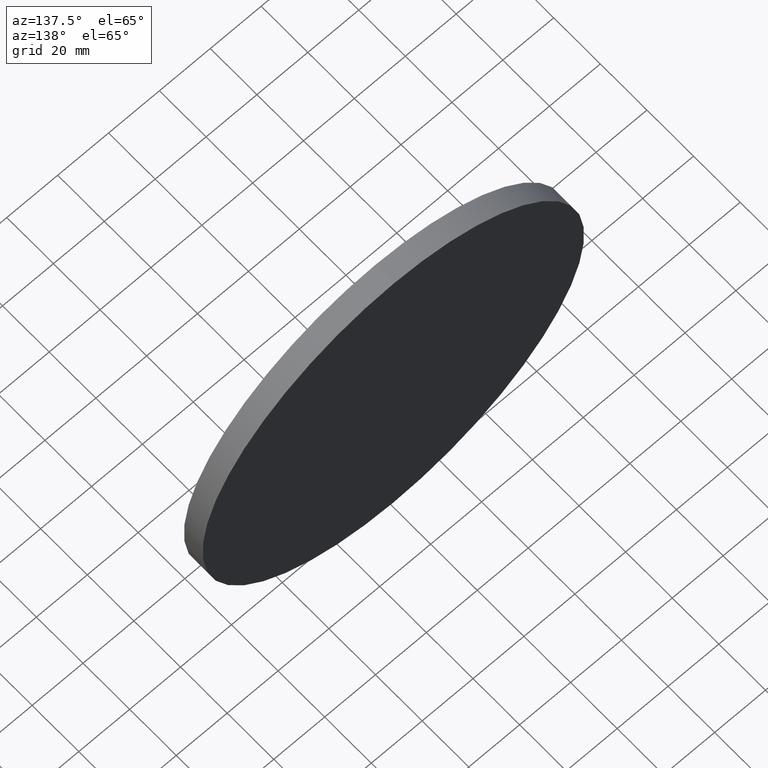
[diagram: clean part render]
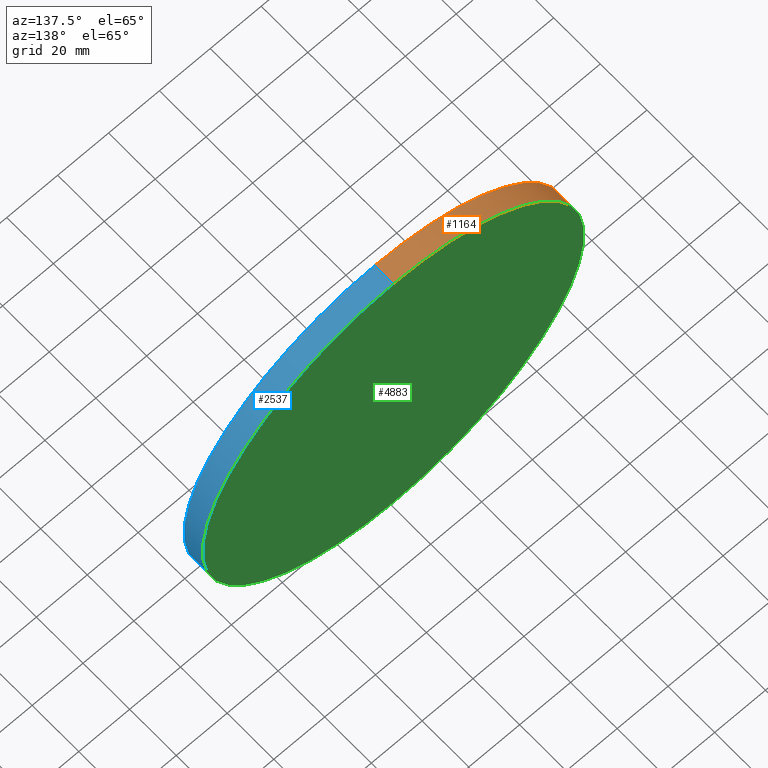
[diagram: same view with three faces highlighted in distinct colors, each labeled with its STEP entity id]
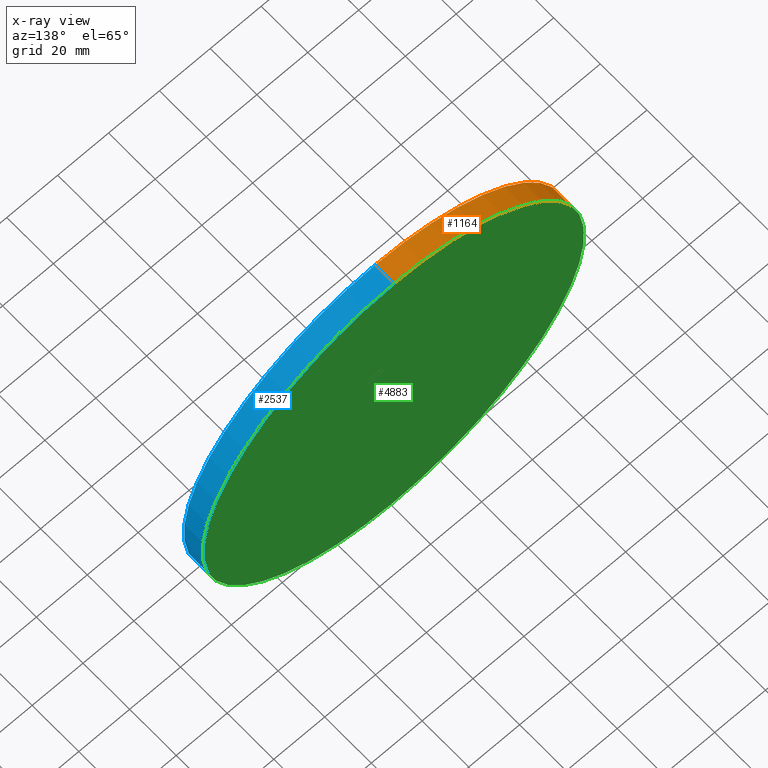
[diagram: x-ray of the same camera — body ghosted, the three highlighted faces saturated]
A machine part, auxiliary view with three faces highlighted in distinct colors.
The next image is the same camera in x-ray (body ghosted, the three faces saturated) — at least one of them is partly hidden behind the body in this view.
Their STEP definitions:

[orange] entity #1164 — the highlighted cylindrical surface (partial cylindrical patch) has radius 75 mm, axis along (-0, -1, -0).
#32 = EDGE_CURVE ( 'NONE', #1029, #862, #14235, .T. ) ;
#567 = CIRCLE ( 'NONE', #10108, 75.00000000000001421 ) ;
#862 = VERTEX_POINT ( 'NONE', #3249 ) ;
#1029 = VERTEX_POINT ( 'NONE', #5785 ) ;
#1164 = ADVANCED_FACE ( 'NONE', ( #10298 ), #2645, .T. ) ;
#1425 = DIRECTION ( 'NONE',  ( -0.000000000000000000, -1.000000000000000000, -0.000000000000000000 ) ) ;
#1561 = CARTESIAN_POINT ( 'NONE',  ( 0.000000000000000000, 4.000000000000000000, 0.000000000000000000 ) ) ;
#2645 = CYLINDRICAL_SURFACE ( 'NONE', #7784, 75.00000000000001421 ) ;
#3097 = DIRECTION ( 'NONE',  ( 0.000000000000000000, 0.000000000000000000, 1.000000000000000000 ) ) ;
#3249 = CARTESIAN_POINT ( 'NONE',  ( 9.184850993605150311E-15, -4.000000000000000000, 75.00000000000001421 ) ) ;
#3321 = CARTESIAN_POINT ( 'NONE',  ( 0.000000000000000000, 4.000000000000000000, -75.00000000000001421 ) ) ;
#3605 = ORIENTED_EDGE ( 'NONE', *, *, #4415, .T. ) ;
#4080 = CARTESIAN_POINT ( 'NONE',  ( 0.000000000000000000, -4.000000000000000000, -75.00000000000001421 ) ) ;
#4113 = DIRECTION ( 'NONE',  ( -0.000000000000000000, -1.000000000000000000, -0.000000000000000000 ) ) ;
#4415 = EDGE_CURVE ( 'NONE', #9393, #862, #567, .T. ) ;
#4463 = CIRCLE ( 'NONE', #11607, 75.00000000000001421 ) ;
#4723 = VECTOR ( 'NONE', #1425, 1000.000000000000000 ) ;
#5473 = EDGE_CURVE ( 'NONE', #9925, #1029, #4463, .T. ) ;
#5785 = CARTESIAN_POINT ( 'NONE',  ( 9.184850993605150311E-15, 4.000000000000000000, 75.00000000000001421 ) ) ;
#5864 = VECTOR ( 'NONE', #7467, 1000.000000000000000 ) ;
#6283 = CARTESIAN_POINT ( 'NONE',  ( 0.000000000000000000, 4.000000000000000000, -75.00000000000001421 ) ) ;
#6416 = DIRECTION ( 'NONE',  ( 0.000000000000000000, 1.000000000000000000, 0.000000000000000000 ) ) ;
#6611 = ORIENTED_EDGE ( 'NONE', *, *, #32, .F. ) ;
#7467 = DIRECTION ( 'NONE',  ( -0.000000000000000000, -1.000000000000000000, -0.000000000000000000 ) ) ;
#7784 = AXIS2_PLACEMENT_3D ( 'NONE', #13292, #4113, #10110 ) ;
#9113 = EDGE_LOOP ( 'NONE', ( #6611, #12250, #13894, #3605 ) ) ;
#9393 = VERTEX_POINT ( 'NONE', #4080 ) ;
#9925 = VERTEX_POINT ( 'NONE', #3321 ) ;
#10108 = AXIS2_PLACEMENT_3D ( 'NONE', #13795, #10245, #3097 ) ;
#10110 = DIRECTION ( 'NONE',  ( 0.000000000000000000, 0.000000000000000000, -1.000000000000000000 ) ) ;
#10245 = DIRECTION ( 'NONE',  ( 0.000000000000000000, 1.000000000000000000, 0.000000000000000000 ) ) ;
#10298 = FACE_OUTER_BOUND ( 'NONE', #9113, .T. ) ;
#11086 = LINE ( 'NONE', #6283, #5864 ) ;
#11607 = AXIS2_PLACEMENT_3D ( 'NONE', #1561, #6416, #12326 ) ;
#12250 = ORIENTED_EDGE ( 'NONE', *, *, #5473, .F. ) ;
#12326 = DIRECTION ( 'NONE',  ( 0.000000000000000000, 0.000000000000000000, 1.000000000000000000 ) ) ;
#13274 = CARTESIAN_POINT ( 'NONE',  ( 9.184850993605150311E-15, 4.000000000000000000, 75.00000000000001421 ) ) ;
#13292 = CARTESIAN_POINT ( 'NONE',  ( 0.000000000000000000, 4.000000000000000000, 0.000000000000000000 ) ) ;
#13795 = CARTESIAN_POINT ( 'NONE',  ( 0.000000000000000000, -4.000000000000000000, 0.000000000000000000 ) ) ;
#13894 = ORIENTED_EDGE ( 'NONE', *, *, #15021, .T. ) ;
#14235 = LINE ( 'NONE', #13274, #4723 ) ;
#15021 = EDGE_CURVE ( 'NONE', #9925, #9393, #11086, .T. ) ;

[blue] entity #2537 — the highlighted cylindrical surface (partial cylindrical patch) has radius 75 mm, axis along (-0, -1, -0).
#32 = EDGE_CURVE ( 'NONE', #1029, #862, #14235, .T. ) ;
#236 = DIRECTION ( 'NONE',  ( 0.000000000000000000, 1.000000000000000000, 0.000000000000000000 ) ) ;
#862 = VERTEX_POINT ( 'NONE', #3249 ) ;
#867 = CARTESIAN_POINT ( 'NONE',  ( 0.000000000000000000, 4.000000000000000000, 0.000000000000000000 ) ) ;
#1029 = VERTEX_POINT ( 'NONE', #5785 ) ;
#1314 = FACE_OUTER_BOUND ( 'NONE', #3149, .T. ) ;
#1425 = DIRECTION ( 'NONE',  ( -0.000000000000000000, -1.000000000000000000, -0.000000000000000000 ) ) ;
#1959 = ORIENTED_EDGE ( 'NONE', *, *, #13224, .T. ) ;
#2016 = AXIS2_PLACEMENT_3D ( 'NONE', #11319, #10026, #4128 ) ;
#2168 = DIRECTION ( 'NONE',  ( 0.000000000000000000, 0.000000000000000000, 1.000000000000000000 ) ) ;
#2537 = ADVANCED_FACE ( 'NONE', ( #1314 ), #12343, .T. ) ;
#3070 = ORIENTED_EDGE ( 'NONE', *, *, #15021, .F. ) ;
#3149 = EDGE_LOOP ( 'NONE', ( #12999, #11651, #1959, #3070 ) ) ;
#3249 = CARTESIAN_POINT ( 'NONE',  ( 9.184850993605150311E-15, -4.000000000000000000, 75.00000000000001421 ) ) ;
#3321 = CARTESIAN_POINT ( 'NONE',  ( 0.000000000000000000, 4.000000000000000000, -75.00000000000001421 ) ) ;
#3448 = CIRCLE ( 'NONE', #5452, 75.00000000000001421 ) ;
#3563 = DIRECTION ( 'NONE',  ( 0.000000000000000000, 0.000000000000000000, 1.000000000000000000 ) ) ;
#3606 = CARTESIAN_POINT ( 'NONE',  ( 0.000000000000000000, -4.000000000000000000, 0.000000000000000000 ) ) ;
#4080 = CARTESIAN_POINT ( 'NONE',  ( 0.000000000000000000, -4.000000000000000000, -75.00000000000001421 ) ) ;
#4128 = DIRECTION ( 'NONE',  ( 0.000000000000000000, 0.000000000000000000, -1.000000000000000000 ) ) ;
#4723 = VECTOR ( 'NONE', #1425, 1000.000000000000000 ) ;
#5452 = AXIS2_PLACEMENT_3D ( 'NONE', #867, #6949, #2168 ) ;
#5785 = CARTESIAN_POINT ( 'NONE',  ( 9.184850993605150311E-15, 4.000000000000000000, 75.00000000000001421 ) ) ;
#5864 = VECTOR ( 'NONE', #7467, 1000.000000000000000 ) ;
#6283 = CARTESIAN_POINT ( 'NONE',  ( 0.000000000000000000, 4.000000000000000000, -75.00000000000001421 ) ) ;
#6949 = DIRECTION ( 'NONE',  ( 0.000000000000000000, 1.000000000000000000, 0.000000000000000000 ) ) ;
#7467 = DIRECTION ( 'NONE',  ( -0.000000000000000000, -1.000000000000000000, -0.000000000000000000 ) ) ;
#9393 = VERTEX_POINT ( 'NONE', #4080 ) ;
#9925 = VERTEX_POINT ( 'NONE', #3321 ) ;
#10026 = DIRECTION ( 'NONE',  ( -0.000000000000000000, -1.000000000000000000, -0.000000000000000000 ) ) ;
#11086 = LINE ( 'NONE', #6283, #5864 ) ;
#11319 = CARTESIAN_POINT ( 'NONE',  ( 0.000000000000000000, 4.000000000000000000, 0.000000000000000000 ) ) ;
#11651 = ORIENTED_EDGE ( 'NONE', *, *, #32, .T. ) ;
#12056 = CIRCLE ( 'NONE', #15440, 75.00000000000001421 ) ;
#12343 = CYLINDRICAL_SURFACE ( 'NONE', #2016, 75.00000000000001421 ) ;
#12999 = ORIENTED_EDGE ( 'NONE', *, *, #14400, .F. ) ;
#13224 = EDGE_CURVE ( 'NONE', #862, #9393, #12056, .T. ) ;
#13274 = CARTESIAN_POINT ( 'NONE',  ( 9.184850993605150311E-15, 4.000000000000000000, 75.00000000000001421 ) ) ;
#14235 = LINE ( 'NONE', #13274, #4723 ) ;
#14400 = EDGE_CURVE ( 'NONE', #1029, #9925, #3448, .T. ) ;
#15021 = EDGE_CURVE ( 'NONE', #9925, #9393, #11086, .T. ) ;
#15440 = AXIS2_PLACEMENT_3D ( 'NONE', #3606, #236, #3563 ) ;

[green] entity #4883 — the highlighted planar face has unit normal (0, 1, 0).
#757 = CARTESIAN_POINT ( 'NONE',  ( 0.000000000000000000, 4.000000000000000000, 0.000000000000000000 ) ) ;
#867 = CARTESIAN_POINT ( 'NONE',  ( 0.000000000000000000, 4.000000000000000000, 0.000000000000000000 ) ) ;
#1029 = VERTEX_POINT ( 'NONE', #5785 ) ;
#1561 = CARTESIAN_POINT ( 'NONE',  ( 0.000000000000000000, 4.000000000000000000, 0.000000000000000000 ) ) ;
#2168 = DIRECTION ( 'NONE',  ( 0.000000000000000000, 0.000000000000000000, 1.000000000000000000 ) ) ;
#3321 = CARTESIAN_POINT ( 'NONE',  ( 0.000000000000000000, 4.000000000000000000, -75.00000000000001421 ) ) ;
#3448 = CIRCLE ( 'NONE', #5452, 75.00000000000001421 ) ;
#3625 = ORIENTED_EDGE ( 'NONE', *, *, #14400, .T. ) ;
#4463 = CIRCLE ( 'NONE', #11607, 75.00000000000001421 ) ;
#4883 = ADVANCED_FACE ( 'NONE', ( #7067 ), #12498, .T. ) ;
#5282 = DIRECTION ( 'NONE',  ( 0.000000000000000000, 1.000000000000000000, 0.000000000000000000 ) ) ;
#5452 = AXIS2_PLACEMENT_3D ( 'NONE', #867, #6949, #2168 ) ;
#5473 = EDGE_CURVE ( 'NONE', #9925, #1029, #4463, .T. ) ;
#5785 = CARTESIAN_POINT ( 'NONE',  ( 9.184850993605150311E-15, 4.000000000000000000, 75.00000000000001421 ) ) ;
#6416 = DIRECTION ( 'NONE',  ( 0.000000000000000000, 1.000000000000000000, 0.000000000000000000 ) ) ;
#6949 = DIRECTION ( 'NONE',  ( 0.000000000000000000, 1.000000000000000000, 0.000000000000000000 ) ) ;
#7067 = FACE_OUTER_BOUND ( 'NONE', #14146, .T. ) ;
#9092 = DIRECTION ( 'NONE',  ( 0.000000000000000000, -0.000000000000000000, 1.000000000000000000 ) ) ;
#9925 = VERTEX_POINT ( 'NONE', #3321 ) ;
#11607 = AXIS2_PLACEMENT_3D ( 'NONE', #1561, #6416, #12326 ) ;
#12326 = DIRECTION ( 'NONE',  ( 0.000000000000000000, 0.000000000000000000, 1.000000000000000000 ) ) ;
#12498 = PLANE ( 'NONE',  #12620 ) ;
#12620 = AXIS2_PLACEMENT_3D ( 'NONE', #757, #5282, #9092 ) ;
#13352 = ORIENTED_EDGE ( 'NONE', *, *, #5473, .T. ) ;
#14146 = EDGE_LOOP ( 'NONE', ( #13352, #3625 ) ) ;
#14400 = EDGE_CURVE ( 'NONE', #1029, #9925, #3448, .T. ) ;